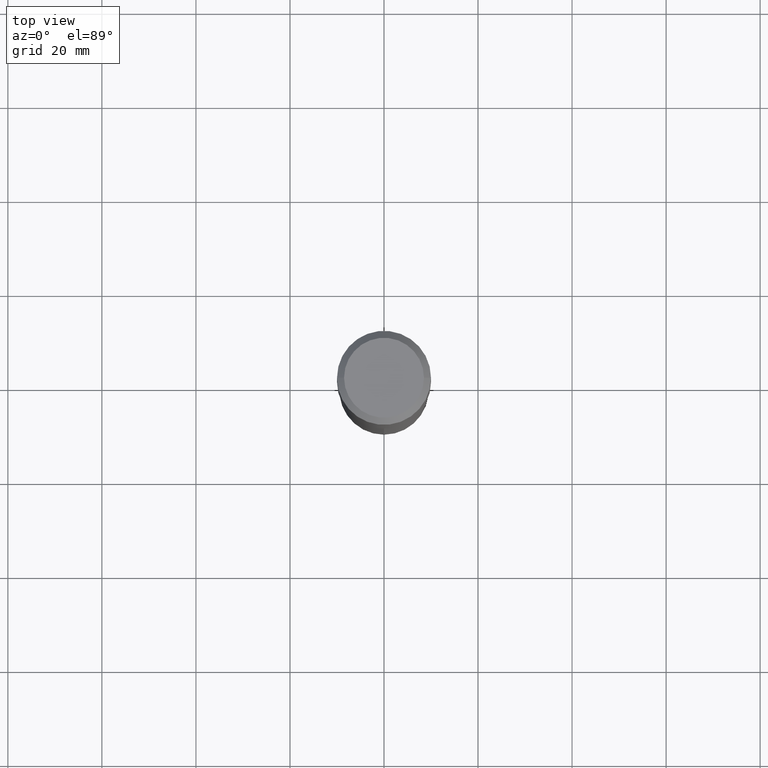
[diagram: clean part render]
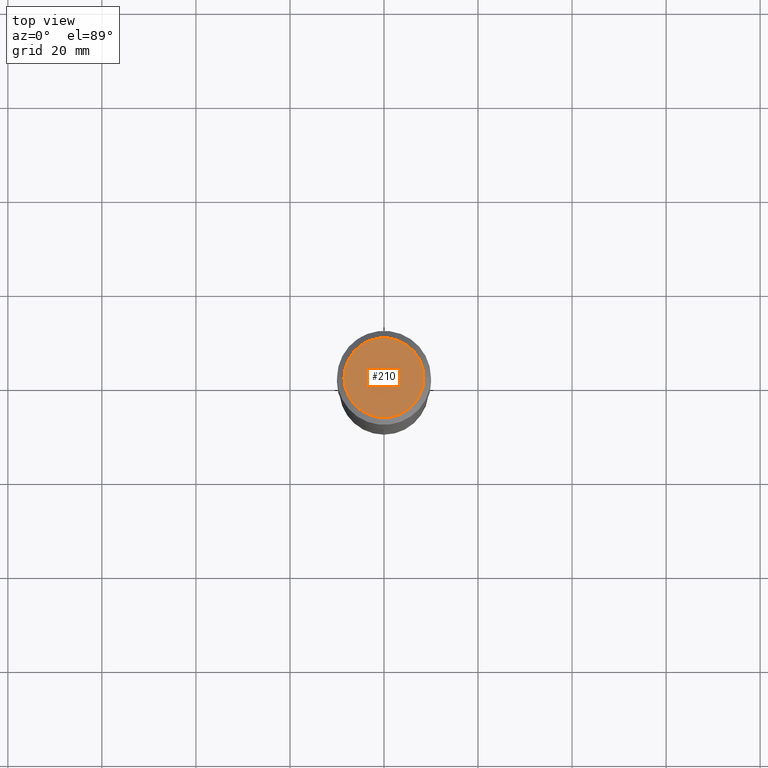
[diagram: same view with one face highlighted and labeled with its STEP entity id]
A machine part, top view. The second image highlights one B-rep face of the part: STEP entity #210.
In plain terms, the highlighted planar face has unit normal (0, -0, -1).
Its self-contained STEP definition (entity closure, byte-faithful):
#23 = EDGE_CURVE ( 'NONE', #255, #348, #290, .T. ) ;
#29 = CIRCLE ( 'NONE', #436, 0.3346450000000000258 ) ;
#36 = AXIS2_PLACEMENT_3D ( 'NONE', #321, #74, #251 ) ;
#66 = DIRECTION ( 'NONE',  ( -2.445468806185136597E-29, 3.491481338843145583E-15, 1.000000000000000000 ) ) ;
#74 = DIRECTION ( 'NONE',  ( 2.438088387897960049E-29, -3.491481338843145188E-15, -1.000000000000000000 ) ) ;
#109 = PLANE ( 'NONE',  #36 ) ;
#158 = DIRECTION ( 'NONE',  ( -2.445468806185136597E-29, 3.491481338843145583E-15, 1.000000000000000000 ) ) ;
#180 = CARTESIAN_POINT ( 'NONE',  ( -1.001697619218024707E-46, 1.430158722866394097E-32, 4.096137381448120692E-18 ) ) ;
#181 = CARTESIAN_POINT ( 'NONE',  ( -1.001697619218024707E-46, 1.430158722866394097E-32, 4.096137381448120692E-18 ) ) ;
#209 = DIRECTION ( 'NONE',  ( 1.000000000000000000, -6.982962677686267499E-15, 4.876152824003125403E-29 ) ) ;
#210 = ADVANCED_FACE ( 'NONE', ( #326 ), #109, .F. ) ;
#251 = DIRECTION ( 'NONE',  ( -1.000000000000000000, 6.982962677686265922E-15, -4.876176775795935793E-29 ) ) ;
#255 = VERTEX_POINT ( 'NONE', #447 ) ;
#272 = ORIENTED_EDGE ( 'NONE', *, *, #23, .T. ) ;
#290 = CIRCLE ( 'NONE', #324, 0.3346450000000000258 ) ;
#310 = CARTESIAN_POINT ( 'NONE',  ( 0.3346450000000000258, -2.601499422326145188E-15, 4.096137381465387809E-18 ) ) ;
#321 = CARTESIAN_POINT ( 'NONE',  ( -5.008488096090123536E-47, 7.150793614331970485E-33, 2.048068690724060346E-18 ) ) ;
#324 = AXIS2_PLACEMENT_3D ( 'NONE', #181, #158, #485 ) ;
#326 = FACE_OUTER_BOUND ( 'NONE', #431, .T. ) ;
#329 = ORIENTED_EDGE ( 'NONE', *, *, #390, .T. ) ;
#348 = VERTEX_POINT ( 'NONE', #310 ) ;
#390 = EDGE_CURVE ( 'NONE', #348, #255, #29, .T. ) ;
#431 = EDGE_LOOP ( 'NONE', ( #272, #329 ) ) ;
#436 = AXIS2_PLACEMENT_3D ( 'NONE', #180, #66, #209 ) ;
#447 = CARTESIAN_POINT ( 'NONE',  ( -0.3346450000000000258, 2.439908260507010921E-15, 4.096137381431418257E-18 ) ) ;
#485 = DIRECTION ( 'NONE',  ( 1.000000000000000000, -6.982962677686267499E-15, 4.876152824003125403E-29 ) ) ;